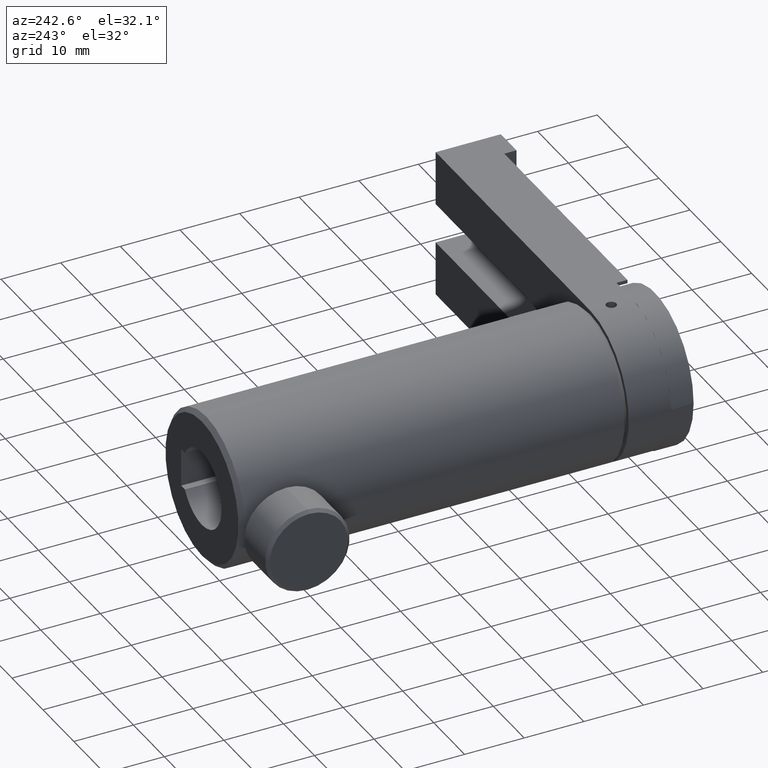
[diagram: clean part render]
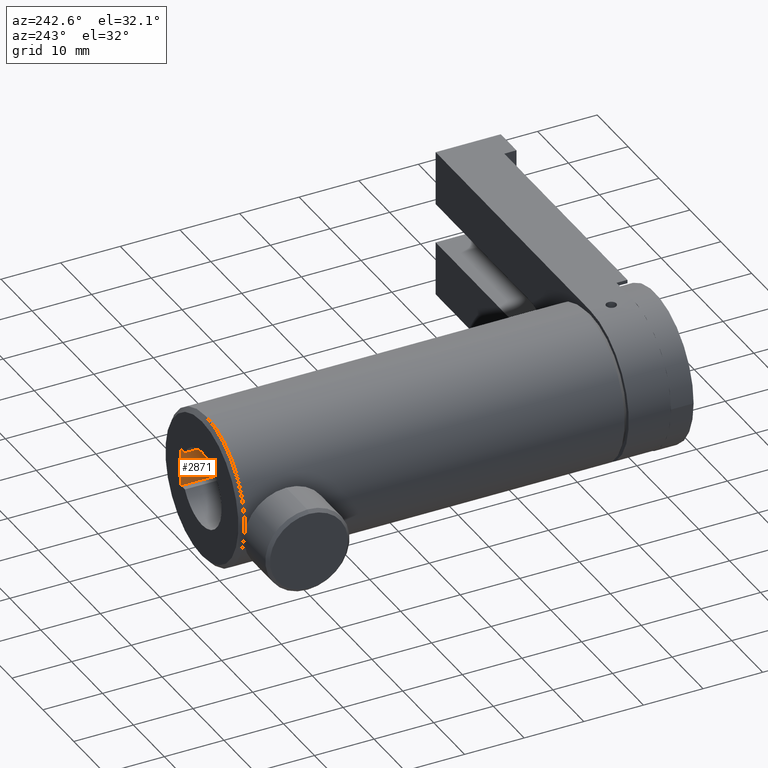
[diagram: same view with one face highlighted and labeled with its STEP entity id]
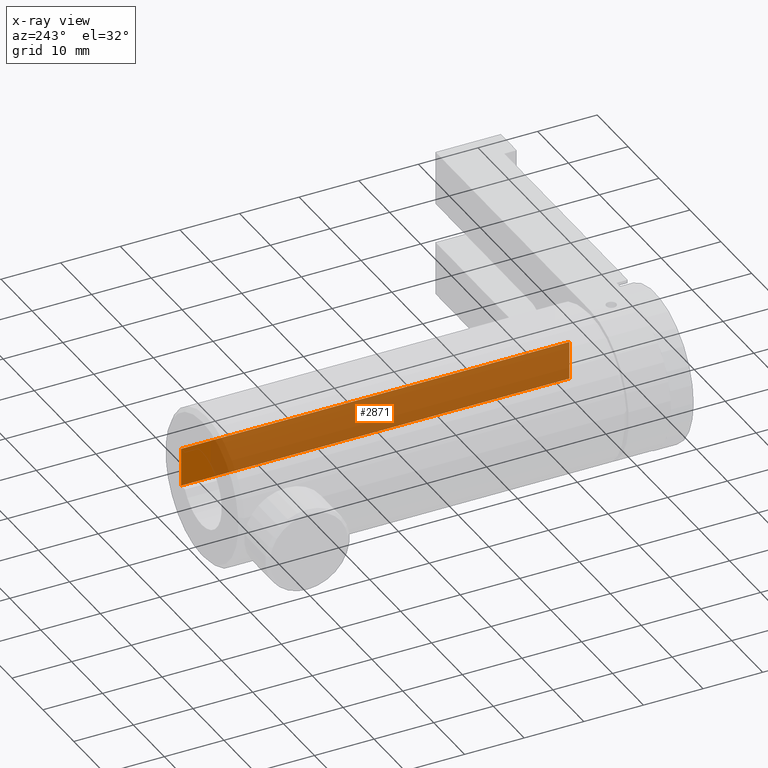
[diagram: x-ray of the same camera — body ghosted, the highlighted face saturated]
A machine part, auxiliary view. The second image highlights one B-rep face of the part: STEP entity #2871.
The next image is the same camera in x-ray: the body ghosted, the highlighted face saturated — about 92% of this face is hidden behind the body in this view.
In plain terms, the highlighted planar face has unit normal (-1, 0, 0).
Its self-contained STEP definition (entity closure, byte-faithful):
#17 = VERTEX_POINT ( 'NONE', #312 ) ;
#44 = ORIENTED_EDGE ( 'NONE', *, *, #1601, .T. ) ;
#312 = CARTESIAN_POINT ( 'NONE',  ( 10.85406664389138400, 5.698134787764893800, -3.225800000000002700 ) ) ;
#315 = LINE ( 'NONE', #2774, #1184 ) ;
#616 = VECTOR ( 'NONE', #1120, 1000.000000000000000 ) ;
#676 = CARTESIAN_POINT ( 'NONE',  ( 10.85406664389138400, 70.82713478776489100, -3.225800000000002700 ) ) ;
#808 = PLANE ( 'NONE',  #2476 ) ;
#888 = EDGE_CURVE ( 'NONE', #2600, #17, #3078, .T. ) ;
#1006 = EDGE_CURVE ( 'NONE', #3808, #17, #2843, .T. ) ;
#1120 = DIRECTION ( 'NONE',  ( -0.0000000000000000000, -1.000000000000000000, -0.0000000000000000000 ) ) ;
#1184 = VECTOR ( 'NONE', #3344, 1000.000000000000000 ) ;
#1196 = CARTESIAN_POINT ( 'NONE',  ( 10.85406664389138400, 70.82713478776489100, 3.225799999999997300 ) ) ;
#1601 = EDGE_CURVE ( 'NONE', #2995, #2600, #315, .T. ) ;
#1770 = DIRECTION ( 'NONE',  ( -0.0000000000000000000, -0.0000000000000000000, -1.000000000000000000 ) ) ;
#1973 = CARTESIAN_POINT ( 'NONE',  ( 10.85406664389138400, 70.82713478776489100, -3.225800000000002700 ) ) ;
#2010 = ORIENTED_EDGE ( 'NONE', *, *, #888, .T. ) ;
#2057 = VECTOR ( 'NONE', #1770, 1000.000000000000000 ) ;
#2264 = LINE ( 'NONE', #3170, #3561 ) ;
#2404 = EDGE_CURVE ( 'NONE', #2995, #3808, #2264, .T. ) ;
#2476 = AXIS2_PLACEMENT_3D ( 'NONE', #1973, #2577, #2893 ) ;
#2480 = ORIENTED_EDGE ( 'NONE', *, *, #1006, .F. ) ;
#2577 = DIRECTION ( 'NONE',  ( -1.000000000000000000, 0.0000000000000000000, 0.0000000000000000000 ) ) ;
#2580 = ORIENTED_EDGE ( 'NONE', *, *, #2404, .F. ) ;
#2600 = VERTEX_POINT ( 'NONE', #676 ) ;
#2774 = CARTESIAN_POINT ( 'NONE',  ( 10.85406664389138400, 70.82713478776489100, -3.225800000000002700 ) ) ;
#2843 = LINE ( 'NONE', #3531, #2057 ) ;
#2871 = ADVANCED_FACE ( 'NONE', ( #2965 ), #808, .T. ) ;
#2881 = CARTESIAN_POINT ( 'NONE',  ( 10.85406664389138400, 70.82713478776489100, -3.225800000000002700 ) ) ;
#2893 = DIRECTION ( 'NONE',  ( 0.0000000000000000000, 0.0000000000000000000, 1.000000000000000000 ) ) ;
#2965 = FACE_OUTER_BOUND ( 'NONE', #3454, .T. ) ;
#2995 = VERTEX_POINT ( 'NONE', #1196 ) ;
#3078 = LINE ( 'NONE', #2881, #616 ) ;
#3170 = CARTESIAN_POINT ( 'NONE',  ( 10.85406664389138400, 70.82713478776489100, 3.225799999999997300 ) ) ;
#3344 = DIRECTION ( 'NONE',  ( -0.0000000000000000000, -0.0000000000000000000, -1.000000000000000000 ) ) ;
#3454 = EDGE_LOOP ( 'NONE', ( #2480, #2580, #44, #2010 ) ) ;
#3455 = CARTESIAN_POINT ( 'NONE',  ( 10.85406664389138400, 5.698134787764893800, 3.225799999999997300 ) ) ;
#3531 = CARTESIAN_POINT ( 'NONE',  ( 10.85406664389138400, 5.698134787764893800, -3.225800000000002700 ) ) ;
#3561 = VECTOR ( 'NONE', #3781, 1000.000000000000000 ) ;
#3781 = DIRECTION ( 'NONE',  ( -0.0000000000000000000, -1.000000000000000000, -0.0000000000000000000 ) ) ;
#3808 = VERTEX_POINT ( 'NONE', #3455 ) ;